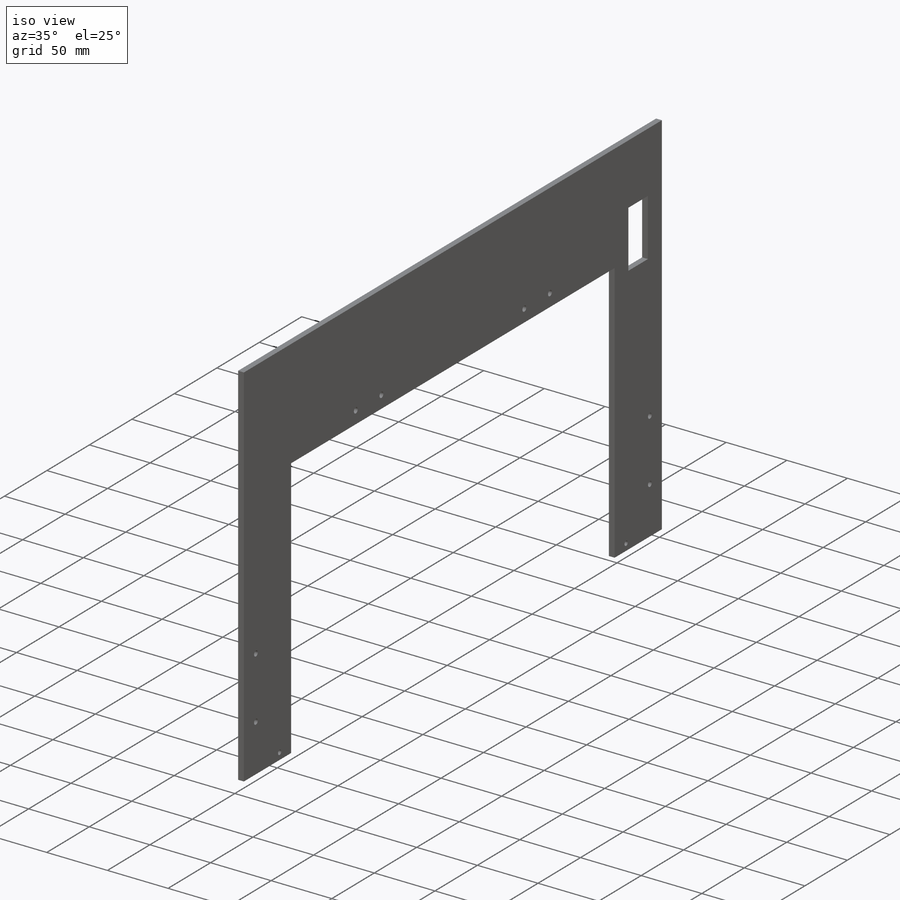
[diagram: iso view]
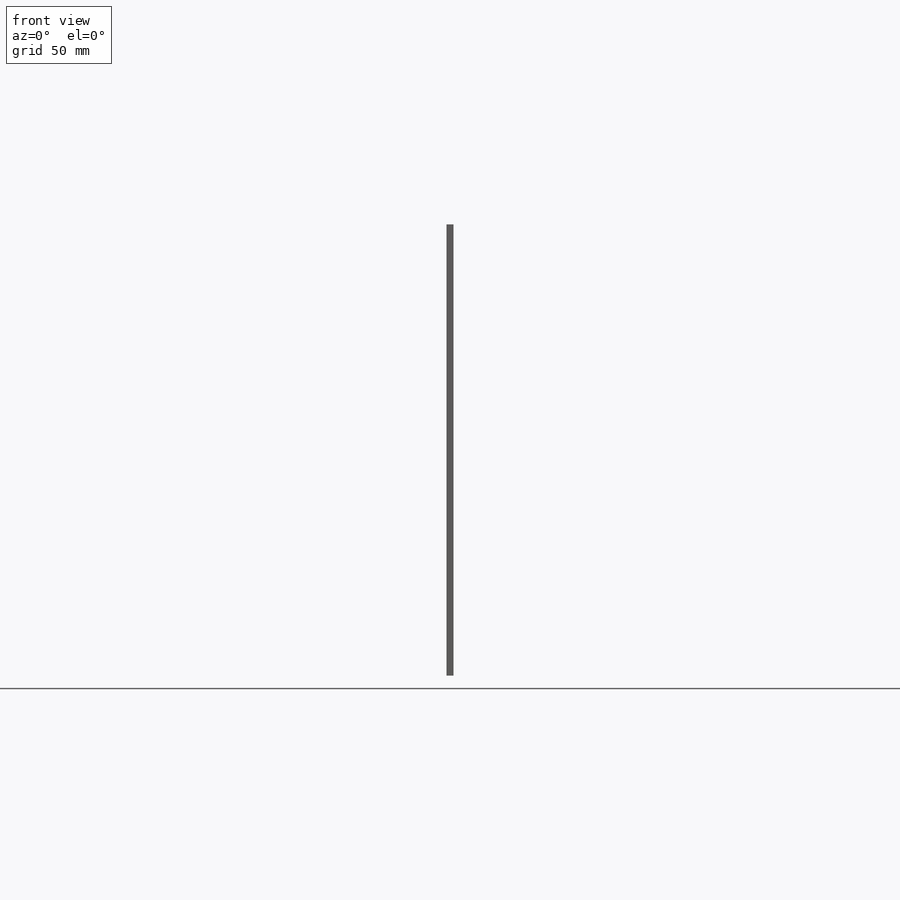
[diagram: front view]
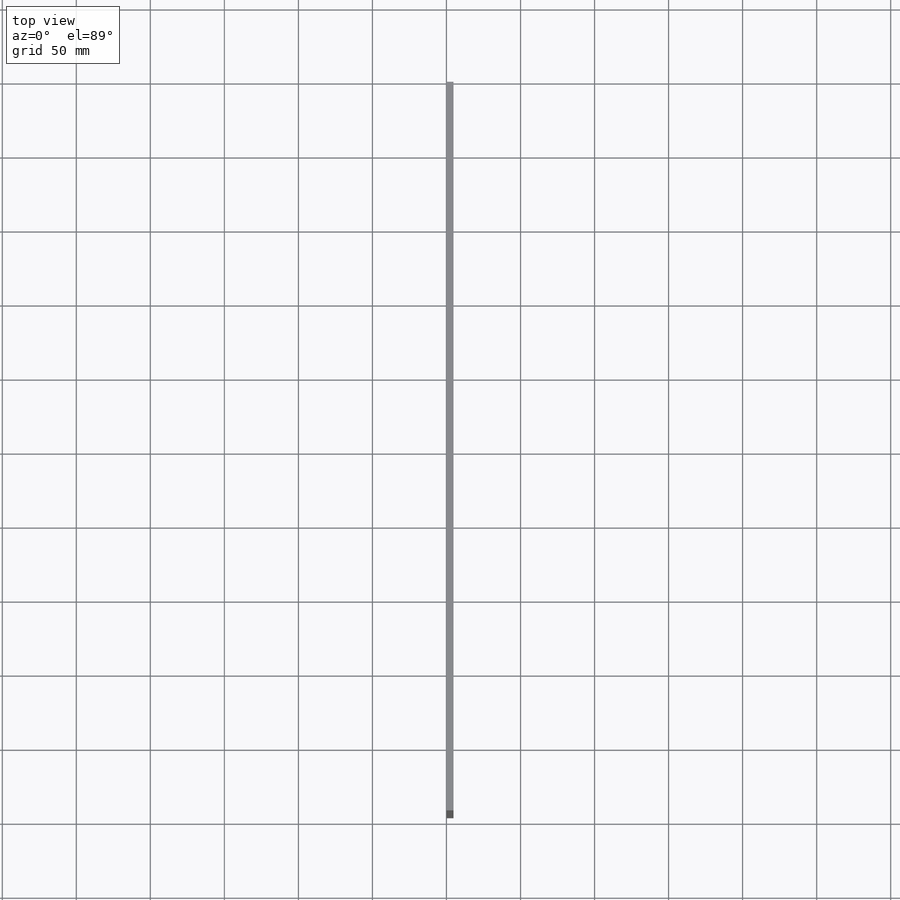
[diagram: top view]
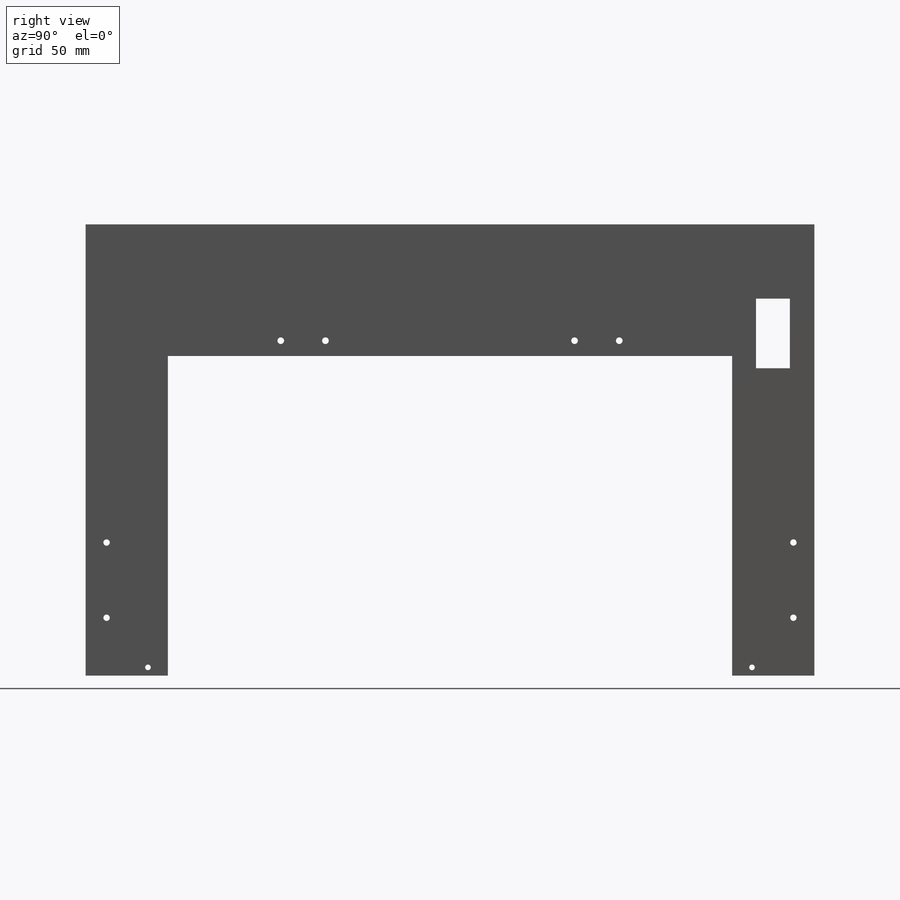
[diagram: right view]
SOLIDWORKS PART (.sldprt)
format: sldprt  version: not decoded by parser v0  size: 342,528 bytes
history: native  units: mm
features: sketch x11, cut_extrude x3, hole x3, extrude x2, material x1 (+12 scaffold rows collapsed)
feature tree (32):
  scaffold x12  (default folders/planes/origin — collapsed)
  material  "Material <not specified>"
  sketch  "Sketch1"  dims[D1=304.8mm D2=492.125mm]
  extrude  "Boss-Extrude1"  Depth=4.7625mm
  sketch  "Sketch2"  dims[D1=120.0mm D2=60.0mm D3=~42.426407mm]
  cut_extrude  "Cut-Extrude1"  [1 undecoded]
  sketch  "Sketch3"
  extrude  "Boss-Extrude2"  [1 undecoded]
  hole  "#8 Clearance Hole1"  Diameter=4.3053mm Depth=74.422mm
  sketch  "Sketch5"  dims[c1.D1=~14.12875mm c1.D2=~14.12875mm c2.D1=~14.12875mm c2.D2=89.916mm c2.D3=39.116mm c2.D4=~14.12875mm]
  sketch  "Sketch4"  dims[hole-wizard template sketch: 50 standard entries collapsed; hole parameters above]
  sketch  "Sketch9"  dims[D1=381.0mm D2=215.9mm]
  cut_extrude  "Cut-Extrude2"  [1 undecoded]
  hole  "#8 Clearance Hole2"  Diameter=4.4958mm Depth=74.422mm
  sketch  "Sketch11"  dims[D1=76.2mm D2=30.1625mm D3=30.1625mm D4=76.2mm D5=~10.31875mm]
  sketch  "Sketch10"  dims[hole-wizard template sketch: 50 standard entries collapsed; hole parameters above]
  hole  "#6 Clearance Hole1"  Diameter=3.7973mm Depth=74.422mm
  sketch  "Sketch13"  dims[D1=5.588mm D2=~13.47089mm D3=~13.47089mm]
  sketch  "Sketch12"  dims[hole-wizard template sketch: 47 standard entries collapsed; hole parameters kept: c15.Hole Depth=74.422mm c15.D3=~14.816244mm c15.Drill Angle=118.0deg]
  sketch  "Sketch14"  dims[D1=22.86mm D2=46.99mm D3=27.94mm D4=73.66mm]
  cut_extrude  "Cut-Extrude3"  Depth=46.736mm
decode coverage: 15 of 19 modeling features carry decoded parameters
note: ~ marks probable driven/reference dimensions
note: 3 parameter values undecoded
summary: no parameter record found for 3 features
note: suppression state not decoded; provenance and decode notes live in map.json
